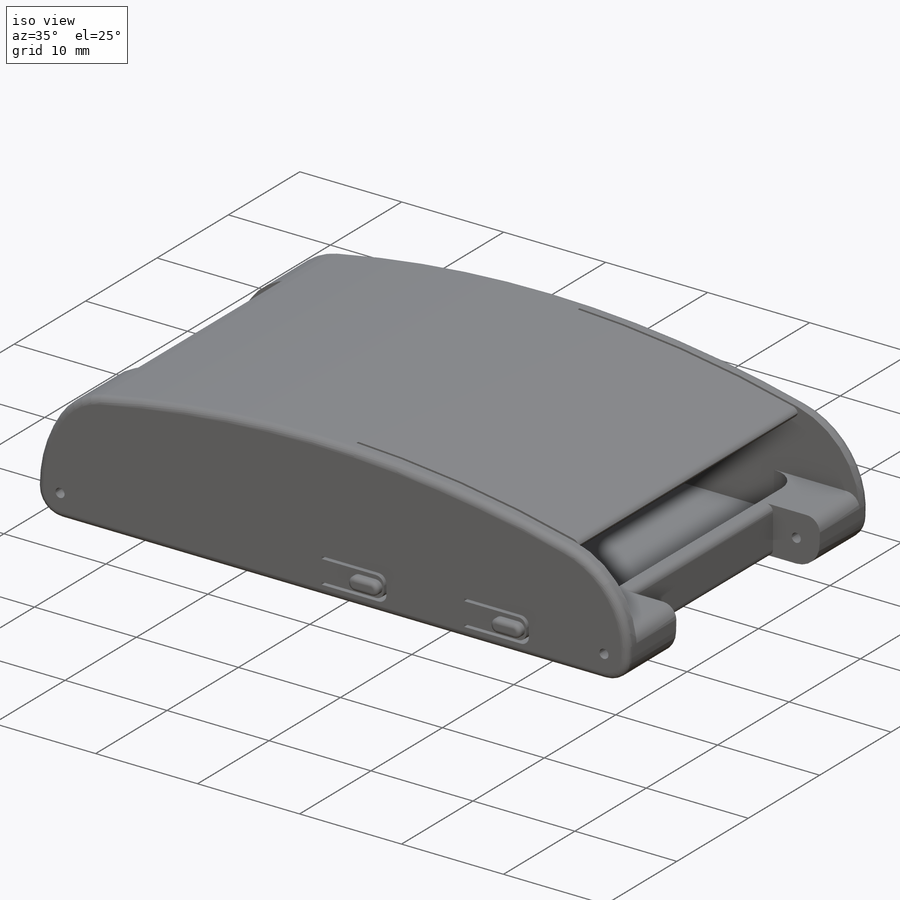
[diagram: iso view]
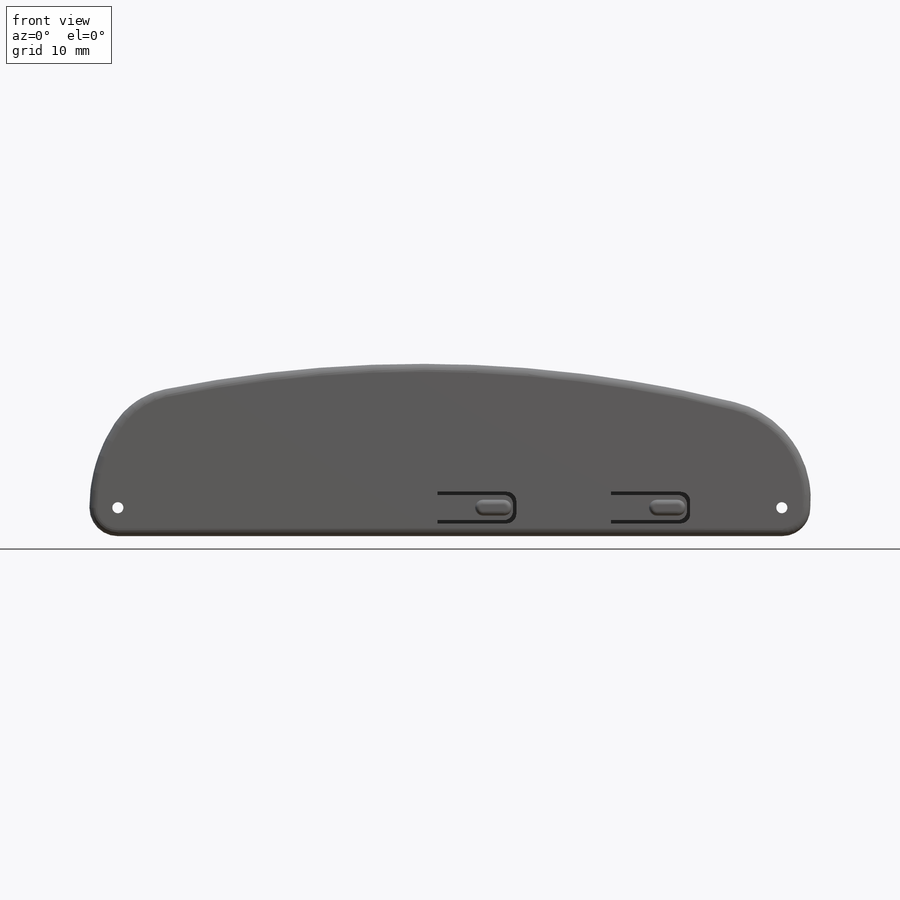
[diagram: front view]
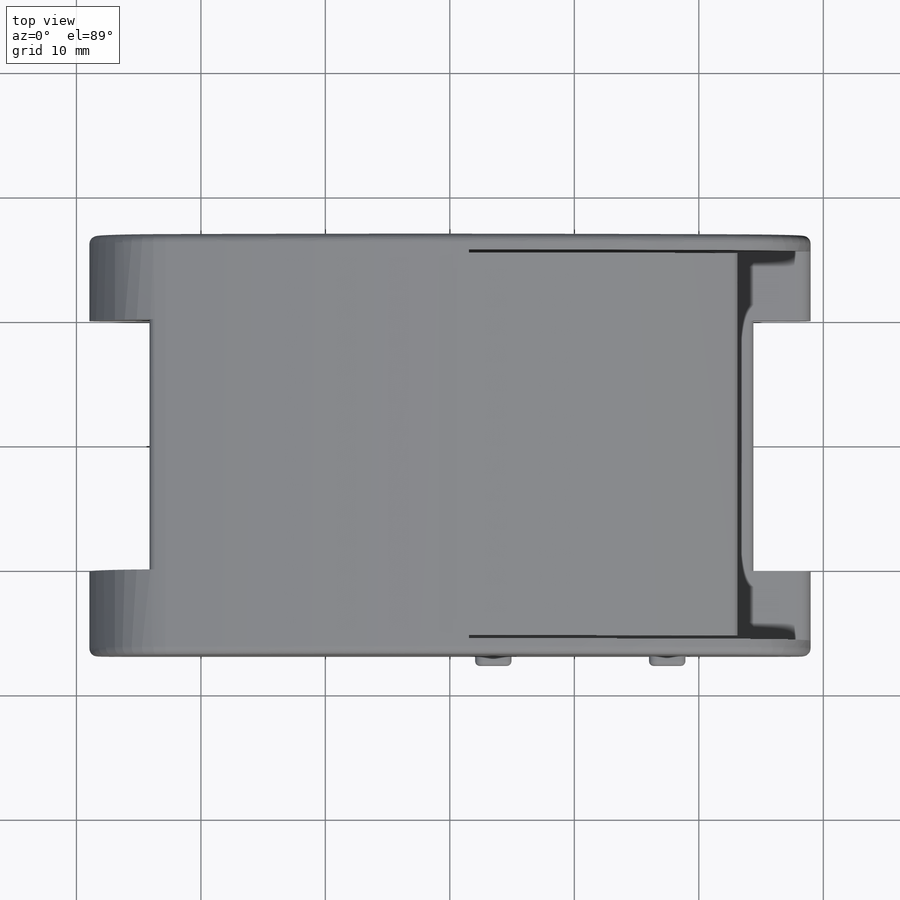
[diagram: top view]
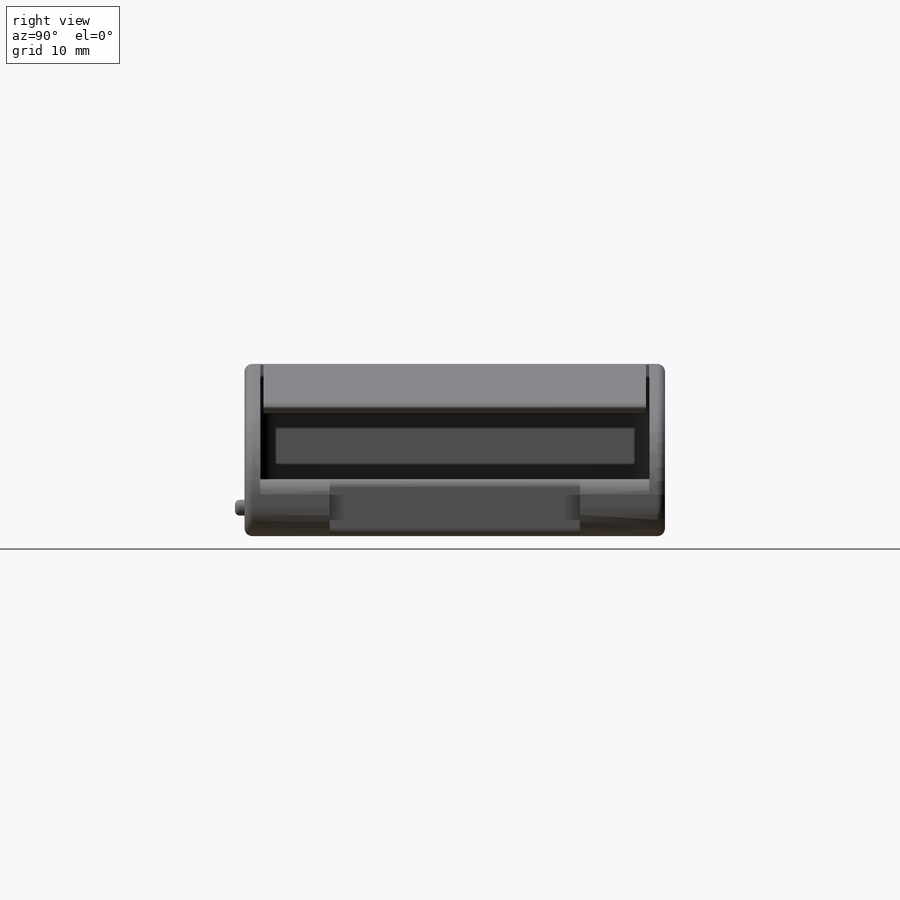
[diagram: right view]
SOLIDWORKS PART (.sldprt)
format: sldprt  version: not decoded by parser v0  size: 667,648 bytes
history: native  units: mm
features: sketch x8, fillet x7, cut_extrude x5, extrude x3, material x1, mirror x1 (+13 scaffold rows collapsed)
feature tree (38):
  scaffold x13  (default folders/planes/origin — collapsed)
  material  "Material <not specified>"
  sketch  "Sketch1"  dims[c1.D5=16.51mm c1.D13=99.06mm c2.D5=2.54mm c2.D2=~103.493871mm c3.D5=0.889mm c3.D13=0.889mm c3.D2=~103.493871mm c3.D14=~103.493871mm c3.D16=~18.959568mm c3.D18=6.35mm c3.D20=3.81mm c4.D16=6.35mm c4.D1=31.75mm c4.D2=12.7mm c4.D3=12.7mm c4.D4=~72.268446mm c5.D4=180.0deg c5.D6=45.72mm c5.D7=7.5311mm c5.D8=39.37mm c5.D9=3.556mm c6.D6=5.715mm c6.D7=4.6609mm c6.D10=7.7724mm c6.D11=45.72mm c6.D12=1.27mm c6.D13=3.175mm c6.D14=2.794mm c7.D13=2.286mm c7.D15=45.72mm c7.D16=86.36mm c7.D17=13.97mm c8.D15=22.86mm c8.D2=1.016mm c8.D3=38.608mm c8.D4=3.5052mm c8.D8=12.7mm c8.D13=53.34mm c9.D2=22.86mm c9.D15=2.286mm c9.D16=~103.980466mm c9.D18=2.032mm c9.D19=1.27mm c9.D21=1.27mm c10.D18=3.556mm c10.D20=0.254mm]
  extrude  "Boss-Extrude1"  Depth=31.242mm
  sketch  "Sketch4"  dims[D1=6.35mm]
  cut_extrude  "Cut-Extrude2"  [1 undecoded]
  sketch  "Sketch2"
  extrude  "Boss-Extrude2"  Depth=1.27mm
  mirror  "Mirror1"
  fillet  "Fillet3"  Radius=1.27mm
  sketch  "Sketch3"  dims[D1=20.1mm D2=1.016mm D3=1.27mm]
  cut_extrude  "Cut-Extrude1"  [1 undecoded]
  sketch  "Sketch5"  dims[D1=0.254mm D2=12.7mm]
  cut_extrude  "Cut-Extrude3"  Depth=21.59mm
  fillet  "Fillet1"  Radius=2.54mm
  fillet  "Fillet2"  Radius=1.27mm
  fillet  "Fillet4"  Radius=0.635mm
  sketch  "Sketch6"  dims[D1=2.54mm]
  cut_extrude  "Cut-Extrude4"  [1 undecoded]
  fillet  "Fillet5"  Radius=0.635mm
  fillet  "Fillet6"  Radius=0.635mm
  sketch  "Sketch7"  dims[D10=0.762mm D1=0.254mm D2=0.254mm D3=1.016mm D4=6.35mm D5=0.254mm D6=2.54mm D7=3.81mm D9=13.97mm D8=2.0]
  cut_extrude  "Cut-Extrude5"  [1 undecoded]
  sketch  "Sketch8"  dims[D1=1.651mm D2=1.27mm D3=0.762mm]
  extrude  "Boss-Extrude3"  Depth=0.762mm
  fillet  "Fillet7"  Radius=0.381mm
decode coverage: 18 of 24 modeling features carry decoded parameters
note: ~ marks probable driven/reference dimensions
note: 4 parameter values undecoded
summary: no parameter record found for 4 features
note: suppression state not decoded; provenance and decode notes live in map.json
